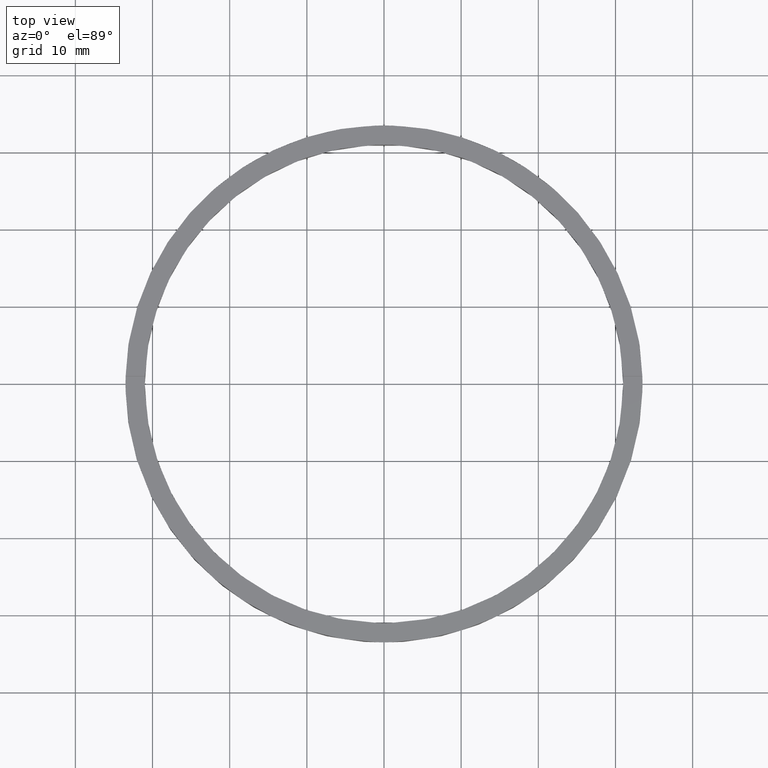
[diagram: clean part render]
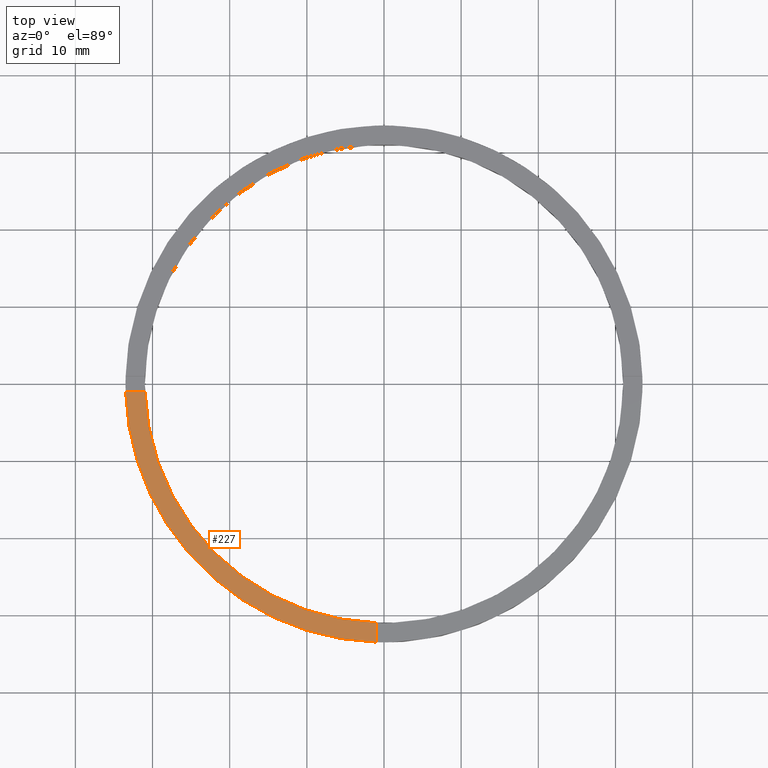
[diagram: same view with one face highlighted and labeled with its STEP entity id]
A machine part, top view. The second image highlights one B-rep face of the part: STEP entity #227.
In plain terms, the highlighted planar face has unit normal (0, 0, 1).
Its self-contained STEP definition (entity closure, byte-faithful):
#14 = CARTESIAN_POINT ( 'NONE',  ( 0.000000000000000000, 0.000000000000000000, 3.000000000000000000 ) ) ;
#24 = DIRECTION ( 'NONE',  ( 1.301042606982605074E-16, -1.000000000000000000, 0.000000000000000000 ) ) ;
#27 = ORIENTED_EDGE ( 'NONE', *, *, #569, .F. ) ;
#60 = ORIENTED_EDGE ( 'NONE', *, *, #503, .F. ) ;
#75 = ORIENTED_EDGE ( 'NONE', *, *, #129, .F. ) ;
#83 = CARTESIAN_POINT ( 'NONE',  ( -1.000000000000160982, -33.48507130050644065, 3.000000000000000000 ) ) ;
#88 = DIRECTION ( 'NONE',  ( 1.000000000000000000, 0.000000000000000000, 0.000000000000000000 ) ) ;
#89 = DIRECTION ( 'NONE',  ( 1.000000000000000000, 0.000000000000000000, -0.000000000000000000 ) ) ;
#129 = EDGE_CURVE ( 'NONE', #276, #464, #646, .T. ) ;
#171 = CARTESIAN_POINT ( 'NONE',  ( -30.98386676965933617, -1.000000000000025979, 3.000000000000000000 ) ) ;
#193 = CARTESIAN_POINT ( 'NONE',  ( 0.000000000000000000, 0.000000000000000000, 3.000000000000000000 ) ) ;
#200 = AXIS2_PLACEMENT_3D ( 'NONE', #14, #696, #89 ) ;
#213 = DIRECTION ( 'NONE',  ( 0.000000000000000000, 0.000000000000000000, 1.000000000000000000 ) ) ;
#227 = ADVANCED_FACE ( 'NONE', ( #325 ), #641, .T. ) ;
#276 = VERTEX_POINT ( 'NONE', #355 ) ;
#312 = ORIENTED_EDGE ( 'NONE', *, *, #341, .T. ) ;
#325 = FACE_OUTER_BOUND ( 'NONE', #417, .T. ) ;
#341 = EDGE_CURVE ( 'NONE', #276, #603, #566, .T. ) ;
#345 = VECTOR ( 'NONE', #24, 1000.000000000000000 ) ;
#355 = CARTESIAN_POINT ( 'NONE',  ( -33.48507130050644065, -1.000000000000026423, 3.000000000000000000 ) ) ;
#368 = VECTOR ( 'NONE', #592, 1000.000000000000000 ) ;
#380 = VERTEX_POINT ( 'NONE', #484 ) ;
#417 = EDGE_LOOP ( 'NONE', ( #60, #27, #75, #312 ) ) ;
#441 = DIRECTION ( 'NONE',  ( 1.000000000000000000, 0.000000000000000000, 0.000000000000000000 ) ) ;
#457 = AXIS2_PLACEMENT_3D ( 'NONE', #624, #213, #88 ) ;
#464 = VERTEX_POINT ( 'NONE', #171 ) ;
#473 = AXIS2_PLACEMENT_3D ( 'NONE', #193, #537, #441 ) ;
#484 = CARTESIAN_POINT ( 'NONE',  ( -1.000000000000161204, -30.98386676965932907, 3.000000000000000000 ) ) ;
#503 = EDGE_CURVE ( 'NONE', #380, #603, #607, .T. ) ;
#516 = CARTESIAN_POINT ( 'NONE',  ( -23.50000000000018829, -1.000000000000024425, 3.000000000000000000 ) ) ;
#537 = DIRECTION ( 'NONE',  ( 0.000000000000000000, 0.000000000000000000, 1.000000000000000000 ) ) ;
#566 = CIRCLE ( 'NONE', #473, 33.50000000000000000 ) ;
#569 = EDGE_CURVE ( 'NONE', #464, #380, #771, .T. ) ;
#592 = DIRECTION ( 'NONE',  ( 1.000000000000000000, 1.951563910473907735E-16, -0.000000000000000000 ) ) ;
#603 = VERTEX_POINT ( 'NONE', #83 ) ;
#607 = LINE ( 'NONE', #693, #345 ) ;
#624 = CARTESIAN_POINT ( 'NONE',  ( 0.000000000000000000, 0.000000000000000000, 3.000000000000000000 ) ) ;
#641 = PLANE ( 'NONE',  #200 ) ;
#646 = LINE ( 'NONE', #516, #368 ) ;
#693 = CARTESIAN_POINT ( 'NONE',  ( -1.000000000000162315, -23.50000000000018119, 3.000000000000000000 ) ) ;
#696 = DIRECTION ( 'NONE',  ( 0.000000000000000000, 0.000000000000000000, 1.000000000000000000 ) ) ;
#771 = CIRCLE ( 'NONE', #457, 31.00000000000000000 ) ;